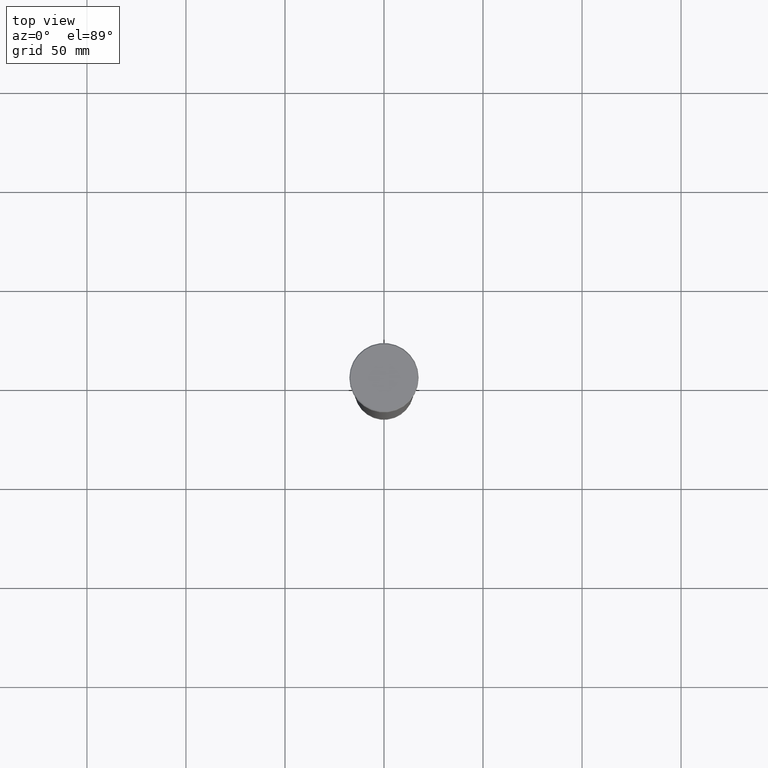
[diagram: clean part render]
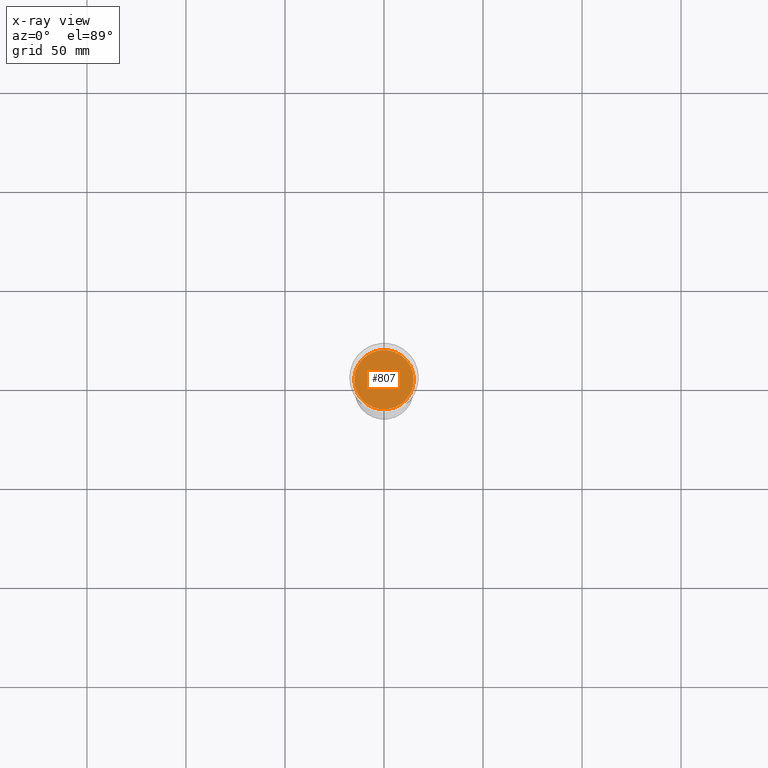
[diagram: x-ray — body ghosted, one internal face saturated and labeled with its STEP entity id]
A machine part, top view, then the same camera in x-ray: the body is ghosted and one INTERNAL B-rep face — a face not visible from any outside direction — is saturated and labeled: STEP entity #807.
In plain terms, the highlighted planar face has unit normal (0, 0, -1).
Its self-contained STEP definition (entity closure, byte-faithful):
#85 = FACE_OUTER_BOUND ( 'NONE', #914, .T. ) ;
#112 = ORIENTED_EDGE ( 'NONE', *, *, #622, .T. ) ;
#123 = CARTESIAN_POINT ( 'NONE',  ( 0.000000000000000000, 0.000000000000000000, -62.00000000000000000 ) ) ;
#127 = ORIENTED_EDGE ( 'NONE', *, *, #307, .T. ) ;
#226 = AXIS2_PLACEMENT_3D ( 'NONE', #123, #744, #301 ) ;
#256 = DIRECTION ( 'NONE',  ( 0.000000000000000000, 0.000000000000000000, -1.000000000000000000 ) ) ;
#301 = DIRECTION ( 'NONE',  ( -1.000000000000000000, 0.000000000000000000, 0.000000000000000000 ) ) ;
#307 = EDGE_CURVE ( 'NONE', #333, #1006, #1039, .T. ) ;
#310 = CARTESIAN_POINT ( 'NONE',  ( -15.00000000000000000, 1.836970198721029589E-15, -62.00000000000000000 ) ) ;
#315 = CARTESIAN_POINT ( 'NONE',  ( 0.000000000000000000, 0.000000000000000000, -62.00000000000000000 ) ) ;
#333 = VERTEX_POINT ( 'NONE', #310 ) ;
#334 = PLANE ( 'NONE',  #562 ) ;
#347 = CARTESIAN_POINT ( 'NONE',  ( 0.000000000000000000, 0.000000000000000000, -62.00000000000000000 ) ) ;
#556 = DIRECTION ( 'NONE',  ( -1.000000000000000000, 0.000000000000000000, 0.000000000000000000 ) ) ;
#562 = AXIS2_PLACEMENT_3D ( 'NONE', #347, #256, #863 ) ;
#622 = EDGE_CURVE ( 'NONE', #1006, #333, #947, .T. ) ;
#744 = DIRECTION ( 'NONE',  ( 0.000000000000000000, 0.000000000000000000, -1.000000000000000000 ) ) ;
#807 = ADVANCED_FACE ( 'NONE', ( #85 ), #334, .T. ) ;
#863 = DIRECTION ( 'NONE',  ( -1.000000000000000000, 0.000000000000000000, -0.000000000000000000 ) ) ;
#914 = EDGE_LOOP ( 'NONE', ( #112, #127 ) ) ;
#947 = CIRCLE ( 'NONE', #226, 15.00000000000000000 ) ;
#1006 = VERTEX_POINT ( 'NONE', #1028 ) ;
#1017 = AXIS2_PLACEMENT_3D ( 'NONE', #315, #1113, #556 ) ;
#1028 = CARTESIAN_POINT ( 'NONE',  ( 15.00000000000000000, 0.000000000000000000, -62.00000000000000000 ) ) ;
#1039 = CIRCLE ( 'NONE', #1017, 15.00000000000000000 ) ;
#1113 = DIRECTION ( 'NONE',  ( 0.000000000000000000, 0.000000000000000000, -1.000000000000000000 ) ) ;